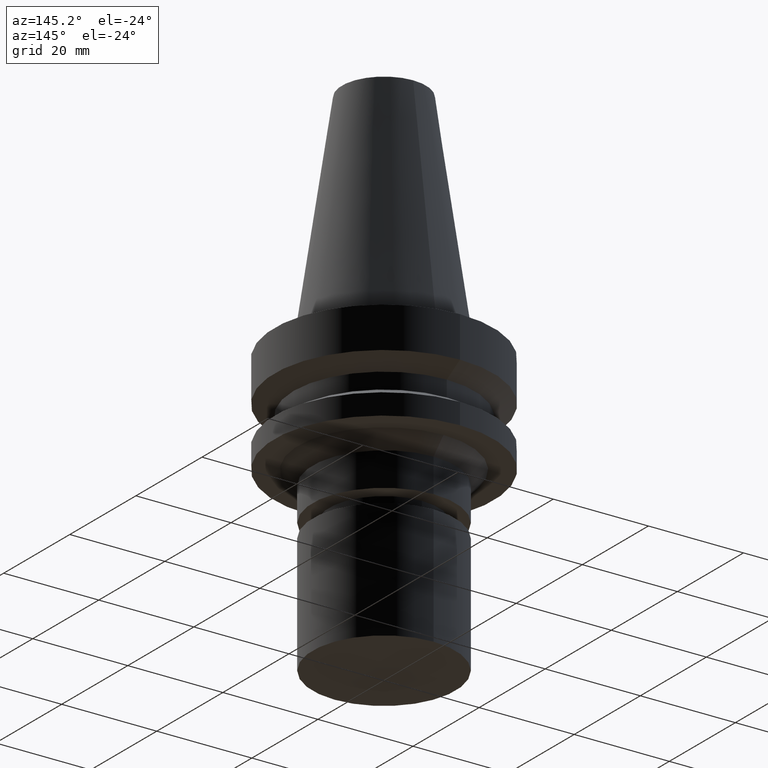
[diagram: clean part render]
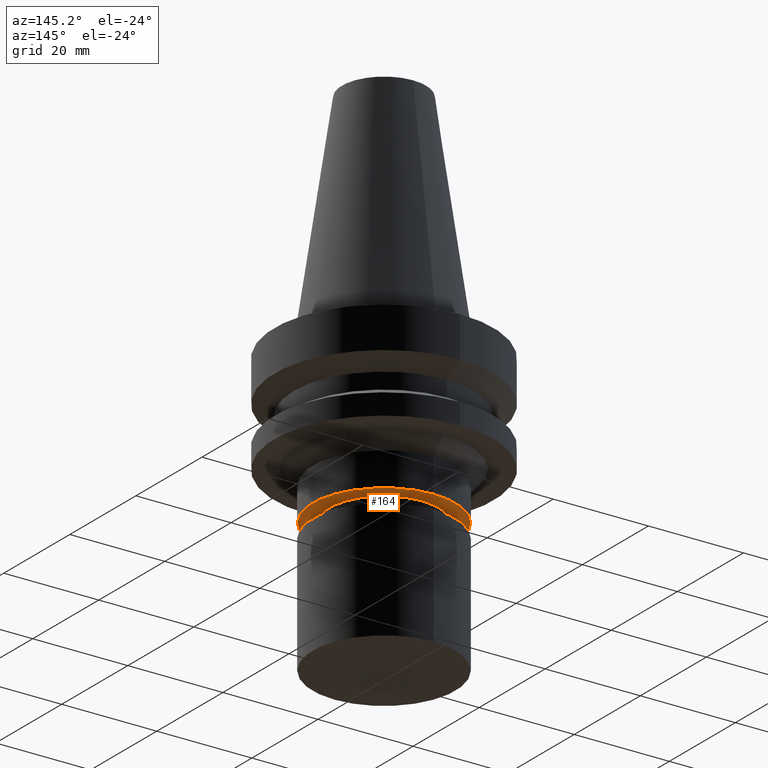
[diagram: same view with one face highlighted and labeled with its STEP entity id]
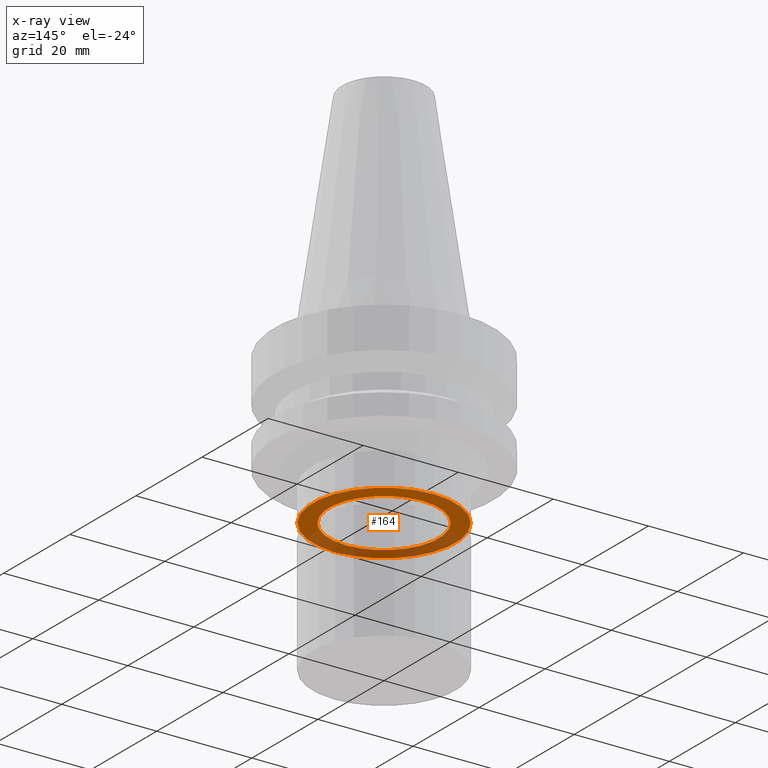
[diagram: x-ray of the same camera — body ghosted, the highlighted face saturated]
A machine part, auxiliary view. The second image highlights one B-rep face of the part: STEP entity #164.
The next image is the same camera in x-ray: the body ghosted, the highlighted face saturated — about 39% of this face is hidden behind the body in this view.
In plain terms, the highlighted planar face has unit normal (0, 0, -1).
Its self-contained STEP definition (entity closure, byte-faithful):
#75=EDGE_CURVE('Unnamed[1]',#201,#201,#202,.T.);
#164=ADVANCED_FACE('Unnamed[1]',(#336,#337),#338,.T.);
#173=EDGE_CURVE('Unnamed[1]',#351,#351,#352,.T.);
#201=VERTEX_POINT('',#377);
#202=CIRCLE('',#378,15.0000000000002);
#336=FACE_BOUND('',#544,.T.);
#337=FACE_OUTER_BOUND('',#545,.T.);
#338=PLANE('',#546);
#351=VERTEX_POINT('',#563);
#352=CIRCLE('',#564,11.4999999999907);
#377=CARTESIAN_POINT('',(1.96555811263146E-015,15.0000000000002,-32.0999999999994));
#378=AXIS2_PLACEMENT_3D('',#580,#581,#582);
#544=EDGE_LOOP('',(#729));
#545=EDGE_LOOP('',(#730));
#546=AXIS2_PLACEMENT_3D('',#731,#732,#733);
#563=CARTESIAN_POINT('',(1.96555811263151E-015,11.4999999999907,-32.1000000000001));
#564=AXIS2_PLACEMENT_3D('',#746,#747,#748);
#580=CARTESIAN_POINT('',(1.96555811263146E-015,3.93111622526292E-015,-32.0999999999994));
#581=DIRECTION('',(6.12323399573677E-017,1.22464679914735E-016,-1.0));
#582=DIRECTION('',(-1.23259516440783E-032,1.0,1.22464679914735E-016));
#729=ORIENTED_EDGE('',*,*,#173,.F.);
#730=ORIENTED_EDGE('',*,*,#75,.T.);
#731=CARTESIAN_POINT('',(1.96555811263148E-015,13.2499999999955,-32.0999999999997));
#732=DIRECTION('',(6.12323399573677E-017,2.051647969987E-013,-1.0));
#733=DIRECTION('',(-1.25675477498395E-029,1.0,2.051647969987E-013));
#746=CARTESIAN_POINT('',(1.96555811263151E-015,3.93111622526301E-015,-32.1000000000001));
#747=DIRECTION('',(6.12323399573677E-017,1.22464679914735E-016,-1.0));
#748=DIRECTION('',(-1.23259516440783E-032,1.0,1.22464679914735E-016));